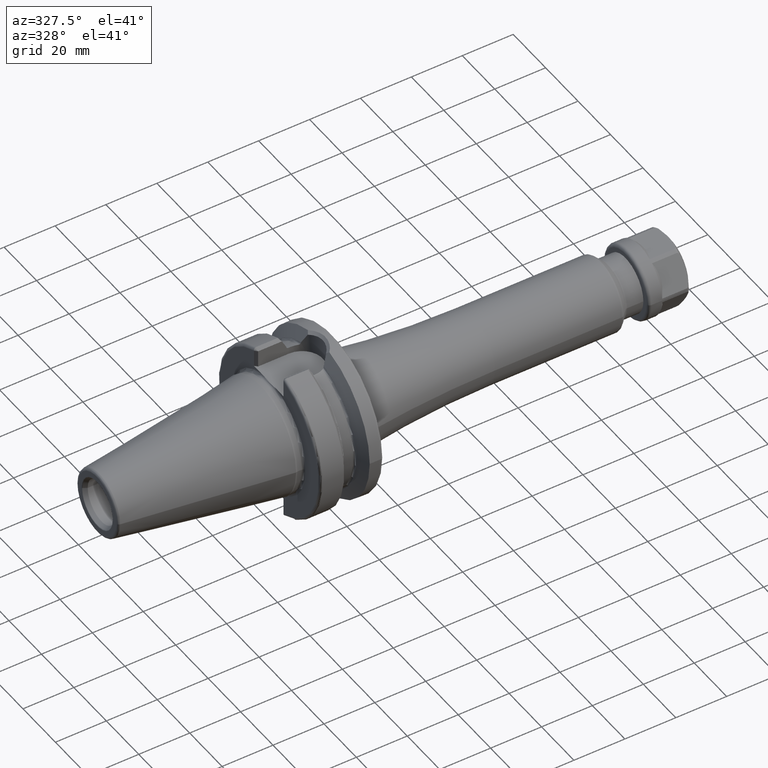
[diagram: clean part render]
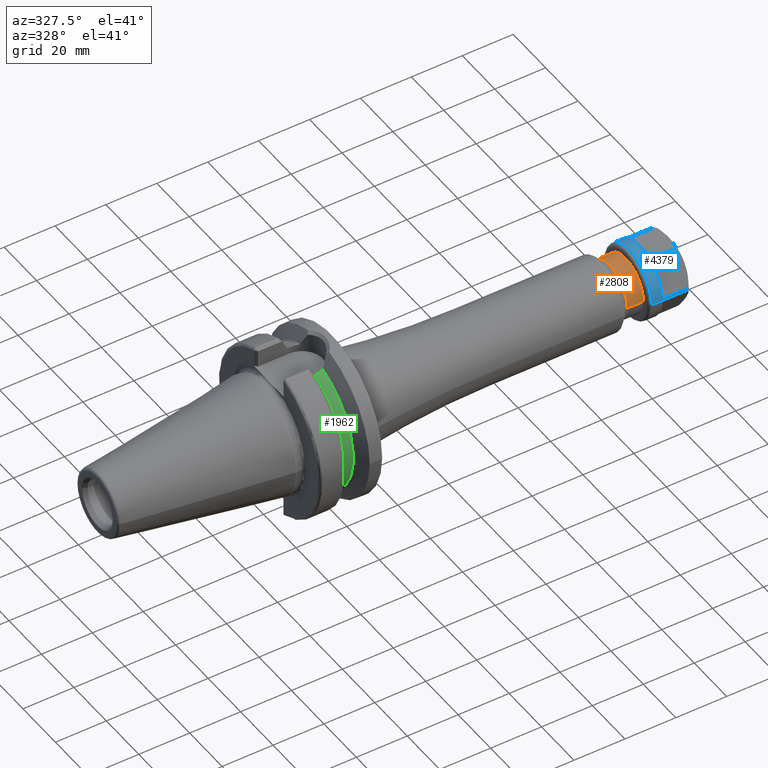
[diagram: same view with three faces highlighted in distinct colors, each labeled with its STEP entity id]
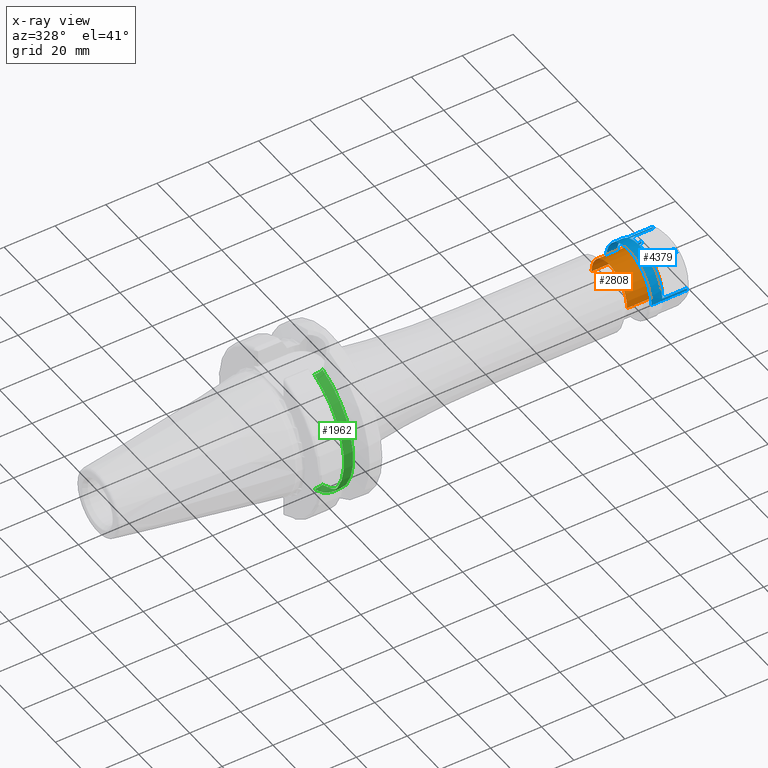
[diagram: x-ray of the same camera — body ghosted, the three highlighted faces saturated]
A machine part, auxiliary view with three faces highlighted in distinct colors.
The next image is the same camera in x-ray (body ghosted, the three faces saturated) — at least one of them is partly hidden behind the body in this view.
Their STEP definitions:

[orange] entity #2808 — the highlighted cylindrical surface (edge-blend (fillet) strip) has radius 11 mm, axis along (1, 0, 0).
#957=DIRECTION('',(-1.E0,0.E0,2.666714219046E-13));
#958=VECTOR('',#957,1.358578643763E1);
#959=CARTESIAN_POINT('',(1.494E2,-1.1E1,0.E0));
#960=LINE('',#959,#958);
#966=DIRECTION('',(-1.E0,0.E0,-2.666957001440E-13));
#967=VECTOR('',#966,1.358578643763E1);
#968=CARTESIAN_POINT('',(1.494E2,1.1E1,0.E0));
#969=LINE('',#968,#967);
#970=CARTESIAN_POINT('',(1.358142135624E2,0.E0,0.E0));
#971=DIRECTION('',(1.E0,0.E0,0.E0));
#972=DIRECTION('',(0.E0,1.E0,0.E0));
#973=AXIS2_PLACEMENT_3D('',#970,#971,#972);
#975=CARTESIAN_POINT('',(1.494E2,0.E0,0.E0));
#976=DIRECTION('',(1.E0,0.E0,0.E0));
#977=DIRECTION('',(0.E0,1.E0,0.E0));
#978=AXIS2_PLACEMENT_3D('',#975,#976,#977);
#1469=CARTESIAN_POINT('',(1.494E2,1.1E1,0.E0));
#1470=CARTESIAN_POINT('',(1.494E2,-1.1E1,0.E0));
#1471=VERTEX_POINT('',#1469);
#1472=VERTEX_POINT('',#1470);
#1489=CARTESIAN_POINT('',(1.358142135624E2,-1.1E1,0.E0));
#1490=CARTESIAN_POINT('',(1.358142135624E2,1.1E1,0.E0));
#1491=VERTEX_POINT('',#1489);
#1492=VERTEX_POINT('',#1490);
#2796=CARTESIAN_POINT('',(2.088E1,0.E0,0.E0));
#2797=DIRECTION('',(1.E0,0.E0,0.E0));
#2798=DIRECTION('',(0.E0,-1.E0,0.E0));
#2799=AXIS2_PLACEMENT_3D('',#2796,#2797,#2798);
#2800=CYLINDRICAL_SURFACE('',#2799,1.1E1);
#2801=ORIENTED_EDGE('',*,*,#2761,.F.);
#2802=ORIENTED_EDGE('',*,*,#2791,.F.);
#2804=ORIENTED_EDGE('',*,*,#2803,.T.);
#2805=ORIENTED_EDGE('',*,*,#2787,.T.);
#2806=EDGE_LOOP('',(#2801,#2802,#2804,#2805));
#2807=FACE_OUTER_BOUND('',#2806,.F.);
#2808=ADVANCED_FACE('',(#2807),#2800,.T.);
#974=CIRCLE('',#973,1.1E1);
#979=CIRCLE('',#978,1.1E1);
#2761=EDGE_CURVE('',#1492,#1491,#974,.T.);
#2787=EDGE_CURVE('',#1472,#1491,#960,.T.);
#2791=EDGE_CURVE('',#1471,#1492,#969,.T.);
#2803=EDGE_CURVE('',#1471,#1472,#979,.T.);

[blue] entity #4379 — the highlighted cylindrical surface (partial cylindrical patch) has radius 14 mm, axis along (1, 0, 0).
#3534=DIRECTION('',(-1.E0,0.E0,1.133010541669E-10));
#3535=VECTOR('',#3534,1.395192378865E1);
#3536=CARTESIAN_POINT('',(1.520192378865E1,1.4E1,-1.972953879608E-10));
#3537=LINE('',#3536,#3535);
#3543=DIRECTION('',(-1.E0,0.E0,-1.133011566448E-10));
#3544=VECTOR('',#3543,1.395192378865E1);
#3545=CARTESIAN_POINT('',(1.520192378865E1,-1.4E1,1.972953760202E-10));
#3546=LINE('',#3545,#3544);
#3610=CARTESIAN_POINT('',(1.520192378865E1,-1.397769760054E1,
7.899175830396E-1));
#3612=CARTESIAN_POINT('',(1.520192378865E1,-7.672937494076E0,1.171008241696E1));
#3630=CARTESIAN_POINT('',(1.520192378865E1,-6.304760106459E0,1.25E1));
#3632=CARTESIAN_POINT('',(1.520192378865E1,6.304760106459E0,1.25E1));
#3650=CARTESIAN_POINT('',(1.520192378865E1,7.672937494076E0,1.171008241696E1));
#3662=CARTESIAN_POINT('',(1.520192378865E1,1.397769760054E1,7.899175830396E-1));
#3821=DIRECTION('',(9.999999999995E-1,6.789211628906E-7,-7.271250890031E-7));
#3822=VECTOR('',#3821,9.700517802338E0);
#3823=CARTESIAN_POINT('',(5.501405986314E0,-7.672944079963E0,1.171008947045E1));
#3824=LINE('',#3823,#3822);
#3825=DIRECTION('',(-1.E0,0.E0,0.E0));
#3826=VECTOR('',#3825,9.700306120238E0);
#3827=CARTESIAN_POINT('',(1.520192378865E1,-1.397769760054E1,
7.899175830396E-1));
#3828=LINE('',#3827,#3826);
#3829=CARTESIAN_POINT('',(5.501103096150E0,4.065342084010E-3,
-2.609772246292E-3));
#3830=DIRECTION('',(-1.E0,0.E0,0.E0));
#3831=DIRECTION('',(0.E0,-9.983973832786E-1,5.659209363951E-2));
#3832=AXIS2_PLACEMENT_3D('',#3829,#3830,#3831);
#3834=CARTESIAN_POINT('',(1.520192378865E1,0.E0,0.E0));
#3835=DIRECTION('',(-1.E0,0.E0,0.E0));
#3836=DIRECTION('',(0.E0,4.503400076042E-1,8.928571428571E-1));
#3837=AXIS2_PLACEMENT_3D('',#3834,#3835,#3836);
#3839=CARTESIAN_POINT('',(1.520192378865E1,0.E0,0.E0));
#3840=DIRECTION('',(-1.E0,0.E0,0.E0));
#3841=DIRECTION('',(0.E0,-5.480669638626E-1,8.364344583543E-1));
#3842=AXIS2_PLACEMENT_3D('',#3839,#3840,#3841);
#3844=CARTESIAN_POINT('',(1.520192378865E1,0.E0,0.E0));
#3845=DIRECTION('',(-1.E0,0.E0,0.E0));
#3846=DIRECTION('',(0.E0,-1.E0,0.E0));
#3847=AXIS2_PLACEMENT_3D('',#3844,#3845,#3846);
#3849=CARTESIAN_POINT('',(1.25E0,0.E0,0.E0));
#3850=DIRECTION('',(-1.E0,0.E0,0.E0));
#3851=DIRECTION('',(0.E0,-1.E0,0.E0));
#3852=AXIS2_PLACEMENT_3D('',#3849,#3850,#3851);
#3854=CARTESIAN_POINT('',(1.520192378865E1,0.E0,0.E0));
#3855=DIRECTION('',(-1.E0,0.E0,0.E0));
#3856=DIRECTION('',(0.E0,9.984069714668E-1,5.642268450283E-2));
#3857=AXIS2_PLACEMENT_3D('',#3854,#3855,#3856);
#3859=CARTESIAN_POINT('',(5.510095784573E0,-3.604537610797E-3,
-2.338467821178E-3));
#3860=DIRECTION('',(-1.E0,0.E0,0.E0));
#3861=DIRECTION('',(0.E0,5.481704884955E-1,8.363666155118E-1));
#3862=AXIS2_PLACEMENT_3D('',#3859,#3860,#3861);
#3879=DIRECTION('',(9.999999999920E-1,3.872004235276E-6,1.005862061417E-6));
#3880=VECTOR('',#3879,9.691332242430E0);
#3881=CARTESIAN_POINT('',(5.510591546294E0,1.397766007566E1,7.899078348962E-1));
#3882=LINE('',#3881,#3880);
#3883=DIRECTION('',(-1.E0,0.E0,0.E0));
#3884=VECTOR('',#3883,9.691561833754E0);
#3885=CARTESIAN_POINT('',(1.520192378865E1,7.672937494076E0,1.171008241696E1));
#3886=LINE('',#3885,#3884);
#3919=DIRECTION('',(9.999999999999E-1,9.964366215769E-8,-4.341640402664E-7));
#3920=VECTOR('',#3919,9.691827833902E0);
#3921=CARTESIAN_POINT('',(5.510095954746E0,6.304759140730E0,1.250000420784E1));
#3922=LINE('',#3921,#3920);
#3923=DIRECTION('',(-1.E0,0.E0,0.E0));
#3924=VECTOR('',#3923,9.691824900384E0);
#3925=CARTESIAN_POINT('',(1.520192378865E1,-6.304760106459E0,1.25E1));
#3926=LINE('',#3925,#3924);
#3943=CARTESIAN_POINT('',(5.510019594413E0,-1.294353786081E-6,
-9.212448693061E-4));
#3944=DIRECTION('',(-1.E0,0.E0,0.E0));
#3945=DIRECTION('',(0.E0,-4.503134764953E-1,8.928705241448E-1));
#3946=AXIS2_PLACEMENT_3D('',#3943,#3944,#3945);
#3976=CARTESIAN_POINT('',(1.25E0,1.4E1,0.E0));
#3977=CARTESIAN_POINT('',(1.25E0,-1.4E1,0.E0));
#3978=VERTEX_POINT('',#3976);
#3979=VERTEX_POINT('',#3977);
#3984=CARTESIAN_POINT('',(1.520192378865E1,1.4E1,-1.972953879608E-10));
#3985=VERTEX_POINT('',#3984);
#3986=CARTESIAN_POINT('',(1.520192378865E1,-1.4E1,1.972953760202E-10));
#3987=VERTEX_POINT('',#3986);
#4000=VERTEX_POINT('',#3610);
#4001=VERTEX_POINT('',#3612);
#4002=VERTEX_POINT('',#3630);
#4003=VERTEX_POINT('',#3632);
#4004=VERTEX_POINT('',#3650);
#4005=VERTEX_POINT('',#3662);
#4012=CARTESIAN_POINT('',(5.501103096150E0,-1.397821137922E1,
7.899467055235E-1));
#4013=CARTESIAN_POINT('',(5.501103096150E0,-7.673107321420E0,1.171034152008E1));
#4014=VERTEX_POINT('',#4012);
#4015=VERTEX_POINT('',#4013);
#4028=CARTESIAN_POINT('',(5.510095784573E0,7.673083408015E0,1.171030504395E1));
#4029=CARTESIAN_POINT('',(5.510095784573E0,1.397816374626E1,7.899439973725E-1));
#4030=VERTEX_POINT('',#4028);
#4031=VERTEX_POINT('',#4029);
#4032=CARTESIAN_POINT('',(5.510019594413E0,-6.304795814642E0,1.250007080131E1));
#4033=CARTESIAN_POINT('',(5.510019594413E0,6.304795289710E0,1.250006976046E1));
#4034=VERTEX_POINT('',#4032);
#4035=VERTEX_POINT('',#4033);
#4349=CARTESIAN_POINT('',(-8.9E-1,0.E0,0.E0));
#4350=DIRECTION('',(1.E0,0.E0,0.E0));
#4351=DIRECTION('',(0.E0,-1.E0,0.E0));
#4352=AXIS2_PLACEMENT_3D('',#4349,#4350,#4351);
#4353=CYLINDRICAL_SURFACE('',#4352,1.4E1);
#4355=ORIENTED_EDGE('',*,*,#4354,.F.);
#4357=ORIENTED_EDGE('',*,*,#4356,.F.);
#4358=ORIENTED_EDGE('',*,*,#4217,.F.);
#4360=ORIENTED_EDGE('',*,*,#4359,.F.);
#4362=ORIENTED_EDGE('',*,*,#4361,.F.);
#4364=ORIENTED_EDGE('',*,*,#4363,.F.);
#4365=ORIENTED_EDGE('',*,*,#4201,.F.);
#4366=ORIENTED_EDGE('',*,*,#4328,.F.);
#4367=ORIENTED_EDGE('',*,*,#4343,.F.);
#4368=ORIENTED_EDGE('',*,*,#4333,.F.);
#4369=ORIENTED_EDGE('',*,*,#4187,.F.);
#4370=ORIENTED_EDGE('',*,*,#4142,.T.);
#4372=ORIENTED_EDGE('',*,*,#4371,.T.);
#4373=ORIENTED_EDGE('',*,*,#4138,.F.);
#4374=ORIENTED_EDGE('',*,*,#4231,.F.);
#4376=ORIENTED_EDGE('',*,*,#4375,.F.);
#4377=EDGE_LOOP('',(#4355,#4357,#4358,#4360,#4362,#4364,#4365,#4366,#4367,#4368,
#4369,#4370,#4372,#4373,#4374,#4376));
#4378=FACE_OUTER_BOUND('',#4377,.F.);
#4379=ADVANCED_FACE('',(#4378),#4353,.T.);
#3833=CIRCLE('',#3832,1.400472092124E1);
#3838=CIRCLE('',#3837,1.4E1);
#3843=CIRCLE('',#3842,1.4E1);
#3848=CIRCLE('',#3847,1.4E1);
#3853=CIRCLE('',#3852,1.4E1);
#3858=CIRCLE('',#3857,1.4E1);
#3863=CIRCLE('',#3862,1.400419779382E1);
#3947=CIRCLE('',#3946,1.400090125962E1);
#4138=EDGE_CURVE('',#3985,#3978,#3537,.T.);
#4142=EDGE_CURVE('',#3987,#3979,#3546,.T.);
#4187=EDGE_CURVE('',#3987,#4000,#3848,.T.);
#4201=EDGE_CURVE('',#4001,#4002,#3843,.T.);
#4217=EDGE_CURVE('',#4003,#4004,#3838,.T.);
#4231=EDGE_CURVE('',#4005,#3985,#3858,.T.);
#4328=EDGE_CURVE('',#4015,#4001,#3824,.T.);
#4333=EDGE_CURVE('',#4000,#4014,#3828,.T.);
#4343=EDGE_CURVE('',#4014,#4015,#3833,.T.);
#4354=EDGE_CURVE('',#4030,#4031,#3863,.T.);
#4356=EDGE_CURVE('',#4004,#4030,#3886,.T.);
#4359=EDGE_CURVE('',#4035,#4003,#3922,.T.);
#4361=EDGE_CURVE('',#4034,#4035,#3947,.T.);
#4363=EDGE_CURVE('',#4002,#4034,#3926,.T.);
#4371=EDGE_CURVE('',#3979,#3978,#3853,.T.);
#4375=EDGE_CURVE('',#4031,#4005,#3882,.T.);

[green] entity #1962 — the highlighted cylindrical surface (partial cylindrical patch) has radius 26.375 mm, axis along (1, 0, 0).
#308=DIRECTION('',(1.E0,0.E0,0.E0));
#309=VECTOR('',#308,3.425E-1);
#310=CARTESIAN_POINT('',(1.48125E1,-8.095E0,-2.510202382279E1));
#311=LINE('',#310,#309);
#367=CARTESIAN_POINT('',(1.83875E1,-7.421588020768E0,-2.530929979770E1));
#368=CARTESIAN_POINT('',(1.804170386611E1,-7.572200800631E0,-2.526513476699E1));
#369=CARTESIAN_POINT('',(1.734035783411E1,-7.820815511030E0,-2.518941465742E1));
#370=CARTESIAN_POINT('',(1.625266243851E1,-8.045449936191E0,-2.511808739805E1));
#371=CARTESIAN_POINT('',(1.552274116086E1,-8.095E0,-2.510202382279E1));
#372=CARTESIAN_POINT('',(1.5155E1,-8.095E0,-2.510202382279E1));
#374=CARTESIAN_POINT('',(1.48125E1,0.E0,0.E0));
#375=DIRECTION('',(-1.E0,0.E0,0.E0));
#376=DIRECTION('',(0.E0,-3.069194312796E-1,-9.517355003902E-1));
#377=AXIS2_PLACEMENT_3D('',#374,#375,#376);
#379=CARTESIAN_POINT('',(1.5155E1,-8.095E0,2.510202382279E1));
#380=CARTESIAN_POINT('',(1.552274116086E1,-8.095E0,2.510202382279E1));
#381=CARTESIAN_POINT('',(1.625266243851E1,-8.045449936191E0,2.511808739805E1));
#382=CARTESIAN_POINT('',(1.734035783411E1,-7.820815511030E0,2.518941465742E1));
#383=CARTESIAN_POINT('',(1.804170386611E1,-7.572200800631E0,2.526513476699E1));
#384=CARTESIAN_POINT('',(1.83875E1,-7.421588020768E0,2.530929979770E1));
#465=CARTESIAN_POINT('',(1.83875E1,0.E0,0.E0));
#466=DIRECTION('',(-1.E0,0.E0,0.E0));
#467=DIRECTION('',(0.E0,-2.813872235362E-1,-9.595943051262E-1));
#468=AXIS2_PLACEMENT_3D('',#465,#466,#467);
#551=DIRECTION('',(1.E0,0.E0,0.E0));
#552=VECTOR('',#551,3.425E-1);
#553=CARTESIAN_POINT('',(1.48125E1,-8.095E0,2.510202382279E1));
#554=LINE('',#553,#552);
#1262=CARTESIAN_POINT('',(1.48125E1,-8.095E0,-2.510202382279E1));
#1263=CARTESIAN_POINT('',(1.48125E1,-8.095E0,2.510202382279E1));
#1264=VERTEX_POINT('',#1262);
#1265=VERTEX_POINT('',#1263);
#1274=CARTESIAN_POINT('',(1.83875E1,-7.421588020768E0,-2.530929979770E1));
#1275=CARTESIAN_POINT('',(1.83875E1,-7.421588020768E0,2.530929979770E1));
#1276=VERTEX_POINT('',#1274);
#1277=VERTEX_POINT('',#1275);
#1403=CARTESIAN_POINT('',(1.5155E1,-8.095E0,2.510202382279E1));
#1404=VERTEX_POINT('',#1403);
#1411=CARTESIAN_POINT('',(1.5155E1,-8.095E0,-2.510202382279E1));
#1412=VERTEX_POINT('',#1411);
#1945=CARTESIAN_POINT('',(1.106999478413E1,0.E0,0.E0));
#1946=DIRECTION('',(1.E0,0.E0,0.E0));
#1947=DIRECTION('',(0.E0,-1.E0,0.E0));
#1948=AXIS2_PLACEMENT_3D('',#1945,#1946,#1947);
#1949=CYLINDRICAL_SURFACE('',#1948,2.6375E1);
#1951=ORIENTED_EDGE('',*,*,#1950,.T.);
#1952=ORIENTED_EDGE('',*,*,#1884,.F.);
#1953=ORIENTED_EDGE('',*,*,#1918,.T.);
#1955=ORIENTED_EDGE('',*,*,#1954,.T.);
#1957=ORIENTED_EDGE('',*,*,#1956,.T.);
#1959=ORIENTED_EDGE('',*,*,#1958,.F.);
#1960=EDGE_LOOP('',(#1951,#1952,#1953,#1955,#1957,#1959));
#1961=FACE_OUTER_BOUND('',#1960,.F.);
#1962=ADVANCED_FACE('',(#1961),#1949,.T.);
#373=B_SPLINE_CURVE_WITH_KNOTS('',3,(#367,#368,#369,#370,#371,#372),
.UNSPECIFIED.,.F.,.F.,(4,1,1,4),(0.E0,3.333333333333E-1,6.666666666667E-1,1.E0),
.UNSPECIFIED.);
#378=CIRCLE('',#377,2.6375E1);
#385=B_SPLINE_CURVE_WITH_KNOTS('',3,(#379,#380,#381,#382,#383,#384),
.UNSPECIFIED.,.F.,.F.,(4,1,1,4),(0.E0,3.333333333333E-1,6.666666666667E-1,1.E0),
.UNSPECIFIED.);
#469=CIRCLE('',#468,2.6375E1);
#1884=EDGE_CURVE('',#1264,#1412,#311,.T.);
#1918=EDGE_CURVE('',#1264,#1265,#378,.T.);
#1950=EDGE_CURVE('',#1276,#1412,#373,.T.);
#1954=EDGE_CURVE('',#1265,#1404,#554,.T.);
#1956=EDGE_CURVE('',#1404,#1277,#385,.T.);
#1958=EDGE_CURVE('',#1276,#1277,#469,.T.);